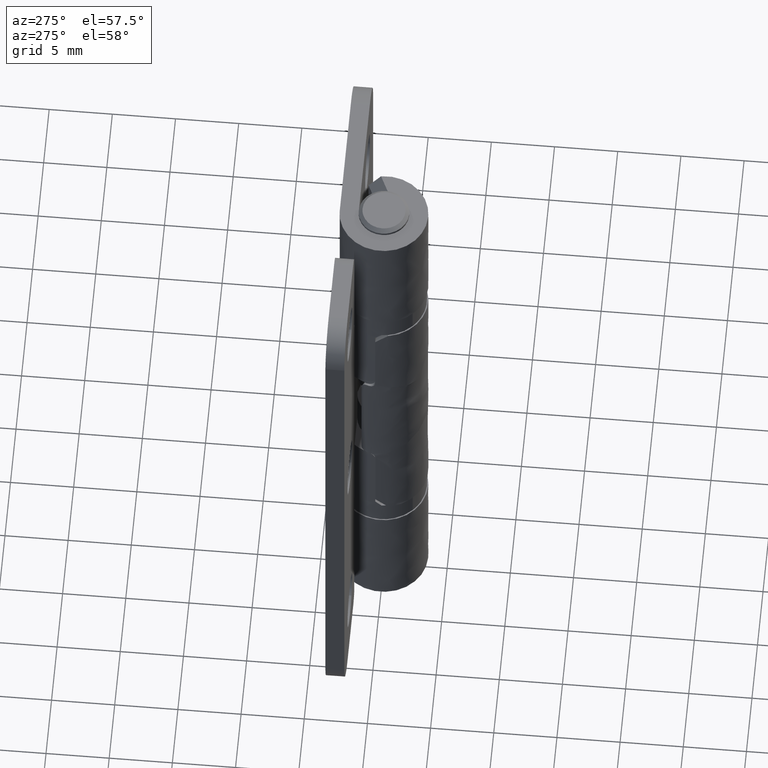
[diagram: clean part render]
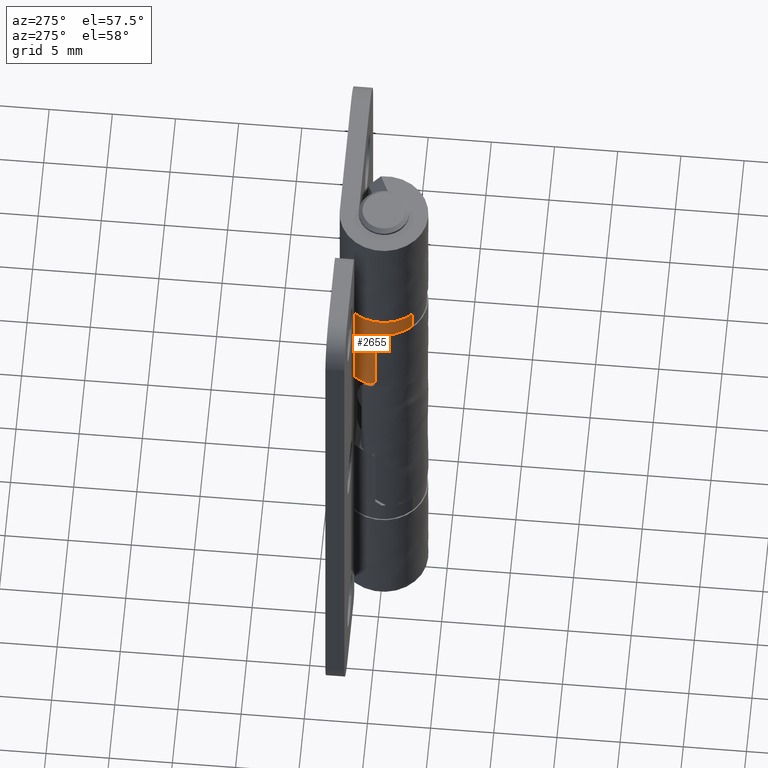
[diagram: same view with one face highlighted and labeled with its STEP entity id]
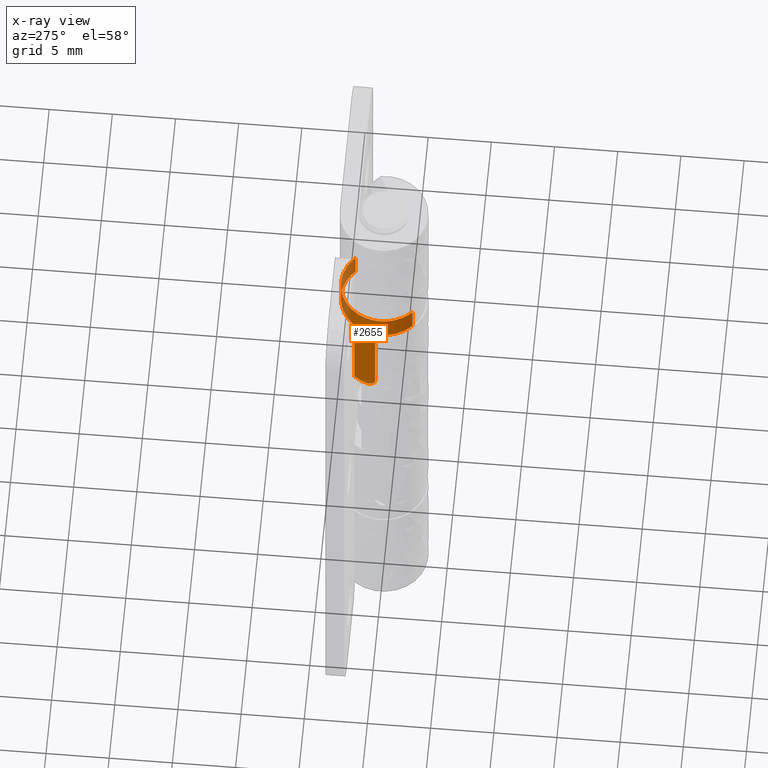
[diagram: x-ray of the same camera — body ghosted, the highlighted face saturated]
A machine part, auxiliary view. The second image highlights one B-rep face of the part: STEP entity #2655.
The next image is the same camera in x-ray: the body ghosted, the highlighted face saturated — about 15% of this face is hidden behind the body in this view.
In plain terms, the highlighted face is a freeform B-spline surface patch.
Its self-contained STEP definition (entity closure, byte-faithful):
#2226=CARTESIAN_POINT('',(-2.673948391424185,2.100000000000000,37.500000000000000));
#2227=VERTEX_POINT('',#2226);
#2228=CARTESIAN_POINT('',(2.335084249452476,2.471311705948677,37.499999999999133));
#2229=VERTEX_POINT('',#2228);
#2230=CARTESIAN_POINT('',(-2.673948391424185,2.100000000000000,37.500000000000000));
#2231=CARTESIAN_POINT('',(-2.446860984896354,2.389517909926240,37.499999999999787));
#2232=CARTESIAN_POINT('',(-2.073221476524923,2.732112761083470,37.499999999999943));
#2233=CARTESIAN_POINT('',(-1.434243733884159,3.099584179573236,37.499999999999503));
#2234=CARTESIAN_POINT('',(-0.797208380572073,3.339256284870213,37.499999999999631));
#2235=CARTESIAN_POINT('',(-0.030314069004772,3.431275899627723,37.499999999999268));
#2236=CARTESIAN_POINT('',(0.616046273145137,3.356977542797326,37.499999999999218));
#2237=CARTESIAN_POINT('',(1.142471623467217,3.214903225576795,37.499999999999048));
#2238=CARTESIAN_POINT('',(1.712568470751842,2.969538489489306,37.499999999999680));
#2239=CARTESIAN_POINT('',(2.121204941445557,2.673525480416244,37.499999999998060));
#2240=CARTESIAN_POINT('',(2.335084249452476,2.471311705948677,37.499999999999133));
#2241=B_SPLINE_CURVE_WITH_KNOTS('',3,(#2230,#2231,#2232,#2233,#2234,#2235,#2236,#2237,#2238,#2239,#2240),.UNSPECIFIED.,.F.,.U.,(4,1,1,1,1,1,1,1,4),(0.000000060900638,1.103751515935517,1.501105692985697,2.207513809151334,3.134641382974980,3.796911351592017,4.150114411264656,4.768226273019617,5.651219744434201),.UNSPECIFIED.);
#2242=EDGE_CURVE('',#2227,#2229,#2241,.T.);
#2257=CARTESIAN_POINT('',(-2.335084283300815,-2.471311673966178,37.499999999998849));
#2258=VERTEX_POINT('',#2257);
#2275=CARTESIAN_POINT('',(-3.398529093593285,-0.100000000000000,37.500000000000000));
#2276=VERTEX_POINT('',#2275);
#2277=CARTESIAN_POINT('',(-2.335084283300815,-2.471311673966178,37.499999999998849));
#2278=CARTESIAN_POINT('',(-2.567358965722630,-2.251986799434556,37.499999999998913));
#2279=CARTESIAN_POINT('',(-2.881913483965952,-1.856963805646113,37.499999999999190));
#2280=CARTESIAN_POINT('',(-3.161907993142021,-1.280423129451357,37.499999999999439));
#2281=CARTESIAN_POINT('',(-3.336656231327816,-0.737329892512926,37.499999999999673));
#2282=CARTESIAN_POINT('',(-3.391226999328339,-0.349900437899915,37.499999999999993));
#2283=CARTESIAN_POINT('',(-3.398529093593285,-0.100000000000000,37.500000000000000));
#2284=B_SPLINE_CURVE_WITH_KNOTS('',3,(#2277,#2278,#2279,#2280,#2281,#2282,#2283),.UNSPECIFIED.,.F.,.U.,(4,1,1,1,4),(0.000000015881580,0.958349280406083,1.500012877243100,1.916687603045425,2.666696221662820),.UNSPECIFIED.);
#2285=EDGE_CURVE('',#2258,#2276,#2284,.T.);
#2309=CARTESIAN_POINT('',(-3.376388603226825,0.400000000000000,37.0));
#2310=VERTEX_POINT('',#2309);
#2311=CARTESIAN_POINT('',(-3.376388603226825,0.400000000000000,37.0));
#2312=CARTESIAN_POINT('',(-3.396057261597581,0.233756814256331,37.166243185743738));
#2313=CARTESIAN_POINT('',(-3.403451601303074,0.066787597650237,37.333212402349623));
#2314=CARTESIAN_POINT('',(-3.398529093593285,-0.100000000000000,37.500000000000000));
#2315=B_SPLINE_CURVE_WITH_KNOTS('',3,(#2311,#2312,#2313,#2314),.UNSPECIFIED.,.F.,.U.,(4,4),(1.235172E-010,0.707775392373292),.UNSPECIFIED.);
#2316=EDGE_CURVE('',#2310,#2276,#2315,.T.);
#2342=CARTESIAN_POINT('',(-3.217141588429080,1.100000000000000,30.0));
#2343=VERTEX_POINT('',#2342);
#2344=CARTESIAN_POINT('',(-3.376388603226825,0.400000000000000,30.699999999999999));
#2345=VERTEX_POINT('',#2344);
#2346=CARTESIAN_POINT('',(-3.217141588429085,1.100000000000000,30.0));
#2347=CARTESIAN_POINT('',(-3.232318538008770,1.055612367565187,30.0));
#2348=CARTESIAN_POINT('',(-3.246346288248855,1.011586832173745,30.004185676620612));
#2349=CARTESIAN_POINT('',(-3.265785333288890,0.946131170841965,30.016759194258871));
#2350=CARTESIAN_POINT('',(-3.271997464484592,0.924410694967024,30.022006067640991));
#2351=CARTESIAN_POINT('',(-3.283902404926151,0.881185301445307,30.034697434204531));
#2352=CARTESIAN_POINT('',(-3.289617764696998,0.859584894326923,30.042189319716350));
#2353=CARTESIAN_POINT('',(-3.305679253735196,0.796473216677799,30.067600799865978));
#2354=CARTESIAN_POINT('',(-3.315049599237199,0.756290191383150,30.088491088603011));
#2355=CARTESIAN_POINT('',(-3.331564691156839,0.679856902312622,30.138253296651420));
#2356=CARTESIAN_POINT('',(-3.338751220014484,0.643317715396455,30.167498324054030));
#2357=CARTESIAN_POINT('',(-3.350754286510747,0.577549221730031,30.231852663960289));
#2358=CARTESIAN_POINT('',(-3.355658744856499,0.547956616801758,30.267095677071548));
#2359=CARTESIAN_POINT('',(-3.361758096326973,0.508682630170671,30.324655783881060));
#2360=CARTESIAN_POINT('',(-3.363583266494174,0.496420964819787,30.344708065505230));
#2361=CARTESIAN_POINT('',(-3.366789786889622,0.474186351393582,30.385520608554341));
#2362=CARTESIAN_POINT('',(-3.368182998898404,0.464139662351543,30.406374564933870));
#2363=CARTESIAN_POINT('',(-3.371827182515211,0.437162226405421,30.470254170125109));
#2364=CARTESIAN_POINT('',(-3.373557316939930,0.423319291858378,30.514803849065860));
#2365=CARTESIAN_POINT('',(-3.375844325215010,0.404676766632367,30.606619079941090));
#2366=CARTESIAN_POINT('',(-3.376388603226824,0.400000000000000,30.653047648541168));
#2367=CARTESIAN_POINT('',(-3.376388603226825,0.400000000000000,30.699999999999999));
#2368=B_SPLINE_CURVE_WITH_KNOTS('',3,(#2346,#2347,#2348,#2349,#2350,#2351,#2352,#2353,#2354,#2355,#2356,#2357,#2358,#2359,#2360,#2361,#2362,#2363,#2364,#2365,#2366,#2367),.UNSPECIFIED.,.F.,.U.,(4,2,2,2,2,2,2,2,2,2,4),(0.0,0.124999999999991,0.187499999999988,0.249999999999984,0.374999999999980,0.499999999999976,0.624999999999972,0.687499999999974,0.749999999999975,0.874999999999988,1.0),.UNSPECIFIED.);
#2369=EDGE_CURVE('',#2343,#2345,#2368,.T.);
#2392=CARTESIAN_POINT('',(-2.673948391424185,2.100000000000000,30.0));
#2393=VERTEX_POINT('',#2392);
#2394=CARTESIAN_POINT('',(-3.217141588429080,1.100000000000000,30.0));
#2395=CARTESIAN_POINT('',(-3.093995210385299,1.460713277519299,29.999999999999869));
#2396=CARTESIAN_POINT('',(-2.909457098941594,1.800320388014576,30.000000000000071));
#2397=CARTESIAN_POINT('',(-2.673948391424185,2.100000000000000,30.0));
#2398=B_SPLINE_CURVE_WITH_KNOTS('',3,(#2394,#2395,#2396,#2397),.UNSPECIFIED.,.F.,.U.,(4,4),(2.755473E-009,1.143391960214372),.UNSPECIFIED.);
#2399=EDGE_CURVE('',#2343,#2393,#2398,.T.);
#2416=CARTESIAN_POINT('',(-3.376388603226825,0.400000000000000,30.699999999999999));
#2417=CARTESIAN_POINT('',(-3.376388603226825,0.400000000000000,37.0));
#2418=QUASI_UNIFORM_CURVE('',1,(#2416,#2417),.UNSPECIFIED.,.F.,.U.);
#2419=EDGE_CURVE('',#2345,#2310,#2418,.T.);
#2433=CARTESIAN_POINT('',(-2.673948391424185,2.100000000000000,30.0));
#2434=CARTESIAN_POINT('',(-2.673948391424185,2.100000000000000,37.500000000000000));
#2435=QUASI_UNIFORM_CURVE('',1,(#2433,#2434),.UNSPECIFIED.,.F.,.U.);
#2436=EDGE_CURVE('',#2393,#2227,#2435,.T.);
#2576=CARTESIAN_POINT('',(-2.335084275354098,-2.471311681474844,39.737499999999997));
#2577=CARTESIAN_POINT('',(-4.806395956828941,-0.136227406120746,39.737500000000011));
#2578=CARTESIAN_POINT('',(-2.471311681474844,2.335084275354098,39.737499999999997));
#2579=CARTESIAN_POINT('',(-0.136227406120746,4.806395956828941,39.737500000000011));
#2580=CARTESIAN_POINT('',(2.335084275354098,2.471311681474844,39.737499999999997));
#2581=CARTESIAN_POINT('',(-2.335084275354098,-2.471311681474844,29.756562500000001));
#2582=CARTESIAN_POINT('',(-4.806395956828941,-0.136227406120746,29.756562500000005));
#2583=CARTESIAN_POINT('',(-2.471311681474844,2.335084275354098,29.756562500000001));
#2584=CARTESIAN_POINT('',(-0.136227406120746,4.806395956828941,29.756562500000005));
#2585=CARTESIAN_POINT('',(2.335084275354098,2.471311681474844,29.756562500000001));
#2593=(BOUNDED_SURFACE()B_SPLINE_SURFACE(2,1,((#2576,#2581),(#2577,#2582),(#2578,#2583),(#2579,#2584),(#2580,#2585)),.UNSPECIFIED.,.F.,.F.,.U.)B_SPLINE_SURFACE_WITH_KNOTS((3,2,3),(2,2),(0.0,5.633304448274090,11.266608896548179),(0.0,9.980937500000003),.UNSPECIFIED.)GEOMETRIC_REPRESENTATION_ITEM()RATIONAL_B_SPLINE_SURFACE(((1.0,1.0),(0.707106781186548,0.707106781186548),(1.0,1.0),(0.707106781186548,0.707106781186548),(1.0,1.0)))REPRESENTATION_ITEM('')SURFACE());
#2594=ORIENTED_EDGE('',*,*,#2285,.F.);
#2595=CARTESIAN_POINT('',(-2.335084452967909,-2.471311835054630,39.500000000000000));
#2596=VERTEX_POINT('',#2595);
#2597=CARTESIAN_POINT('',(-2.335084452967909,-2.471311835054630,39.500000000000000));
#2598=CARTESIAN_POINT('',(-2.335084283300815,-2.471311673966178,37.499999999998849));
#2599=QUASI_UNIFORM_CURVE('',1,(#2597,#2598),.UNSPECIFIED.,.F.,.U.);
#2600=EDGE_CURVE('',#2596,#2258,#2599,.T.);
#2601=ORIENTED_EDGE('',*,*,#2600,.F.);
#2602=CARTESIAN_POINT('',(-3.400000000000000,0.0,39.500000000000000));
#2603=VERTEX_POINT('',#2602);
#2604=CARTESIAN_POINT('',(-2.335084452967909,-2.471311835054630,39.500000000000000));
#2605=CARTESIAN_POINT('',(-2.481730992511204,-2.332772886091524,39.499999999999972));
#2606=CARTESIAN_POINT('',(-2.759841877871343,-2.018651193214833,39.500000000000050));
#2607=CARTESIAN_POINT('',(-3.109910756993002,-1.435266904075947,39.499999999999993));
#2608=CARTESIAN_POINT('',(-3.345263241011535,-0.749299026586163,39.500000000000007));
#2609=CARTESIAN_POINT('',(-3.400041756465702,-0.244970634072911,39.500000000000007));
#2610=CARTESIAN_POINT('',(-3.400000000000000,0.0,39.500000000000000));
#2611=B_SPLINE_CURVE_WITH_KNOTS('',3,(#2604,#2605,#2606,#2607,#2608,#2609,#2610),.UNSPECIFIED.,.F.,.U.,(4,1,1,1,4),(0.000000016434640,0.605216836964936,1.253674341985836,2.031804162054059,2.766712675849431),.UNSPECIFIED.);
#2612=EDGE_CURVE('',#2596,#2603,#2611,.T.);
#2613=ORIENTED_EDGE('',*,*,#2612,.T.);
#2614=CARTESIAN_POINT('',(0.000000935957648,3.399999999999871,39.500000000000007));
#2615=VERTEX_POINT('',#2614);
#2616=CARTESIAN_POINT('',(-3.400000000000000,0.0,39.500000000000000));
#2617=CARTESIAN_POINT('',(-3.400023426994538,0.250343115887056,39.500000000000043));
#2618=CARTESIAN_POINT('',(-3.338355550096241,0.806678618480571,39.499999999999950));
#2619=CARTESIAN_POINT('',(-3.054740880398455,1.569714517326618,39.500000000000071));
#2620=CARTESIAN_POINT('',(-2.627180633355863,2.192762248204852,39.499999999999943));
#2621=CARTESIAN_POINT('',(-2.197539628228294,2.611947440659232,39.499999999999872));
#2622=CARTESIAN_POINT('',(-1.720954210151916,2.952008319931550,39.500000000000107));
#2623=CARTESIAN_POINT('',(-1.166370765806312,3.218513035760972,39.500000000000412));
#2624=CARTESIAN_POINT('',(-0.556322787679199,3.371289313839682,39.499999999999282));
#2625=CARTESIAN_POINT('',(-0.166893735759132,3.400002790561999,39.500000000000753));
#2626=CARTESIAN_POINT('',(0.000000935957648,3.399999999999871,39.500000000000007));
#2627=B_SPLINE_CURVE_WITH_KNOTS('',3,(#2616,#2617,#2618,#2619,#2620,#2621,#2622,#2623,#2624,#2625,#2626),.UNSPECIFIED.,.F.,.U.,(4,1,1,1,1,1,1,1,4),(0.000000054915756,0.751041721906768,1.668983664942510,2.420041704846214,3.004165320047316,3.463135015818343,4.172457333682013,4.840051131963124,5.340741549302451),.UNSPECIFIED.);
#2628=EDGE_CURVE('',#2603,#2615,#2627,.T.);
#2629=ORIENTED_EDGE('',*,*,#2628,.T.);
#2630=CARTESIAN_POINT('',(2.335084452967916,2.471311835054638,39.500000000000007));
#2631=VERTEX_POINT('',#2630);
#2632=CARTESIAN_POINT('',(0.000000935957648,3.399999999999871,39.500000000000007));
#2633=CARTESIAN_POINT('',(0.201097303311176,3.400020918869587,39.500000000000000));
#2634=CARTESIAN_POINT('',(0.576467176210819,3.366595833757418,39.500000000000050));
#2635=CARTESIAN_POINT('',(1.070971310264244,3.238039329511089,39.500000000000028));
#2636=CARTESIAN_POINT('',(1.679565537615934,2.987686386308997,39.499999999999787));
#2637=CARTESIAN_POINT('',(2.081829344645715,2.710851621547696,39.500000000000277));
#2638=CARTESIAN_POINT('',(2.335084452967916,2.471311835054638,39.500000000000007));
#2639=B_SPLINE_CURVE_WITH_KNOTS('',3,(#2632,#2633,#2634,#2635,#2636,#2637,#2638),.UNSPECIFIED.,.F.,.U.,(4,1,1,1,4),(0.000000013324958,0.603287521212699,1.126138555109606,1.528323084523855,2.574027724229173),.UNSPECIFIED.);
#2640=EDGE_CURVE('',#2615,#2631,#2639,.T.);
#2641=ORIENTED_EDGE('',*,*,#2640,.T.);
#2642=CARTESIAN_POINT('',(2.335084452967916,2.471311835054638,39.500000000000007));
#2643=CARTESIAN_POINT('',(2.335084249452476,2.471311705948677,37.499999999999133));
#2644=QUASI_UNIFORM_CURVE('',1,(#2642,#2643),.UNSPECIFIED.,.F.,.U.);
#2645=EDGE_CURVE('',#2631,#2229,#2644,.T.);
#2646=ORIENTED_EDGE('',*,*,#2645,.T.);
#2647=ORIENTED_EDGE('',*,*,#2242,.F.);
#2648=ORIENTED_EDGE('',*,*,#2436,.F.);
#2649=ORIENTED_EDGE('',*,*,#2399,.F.);
#2650=ORIENTED_EDGE('',*,*,#2369,.T.);
#2651=ORIENTED_EDGE('',*,*,#2419,.T.);
#2652=ORIENTED_EDGE('',*,*,#2316,.T.);
#2653=EDGE_LOOP('',(#2594,#2601,#2613,#2629,#2641,#2646,#2647,#2648,#2649,#2650,#2651,#2652));
#2654=FACE_OUTER_BOUND('',#2653,.T.);
#2655=ADVANCED_FACE('',(#2654),#2593,.T.);